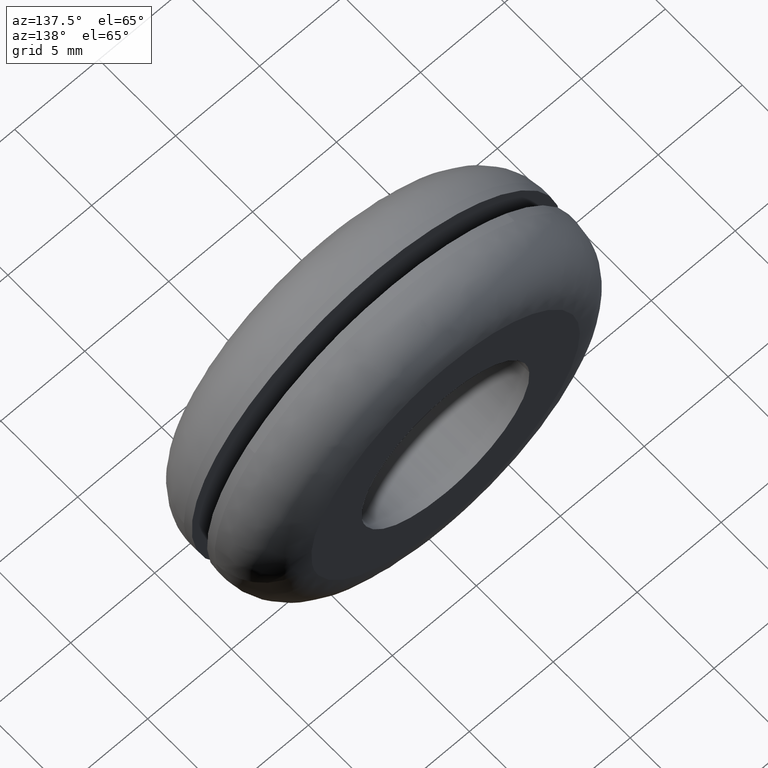
[diagram: clean part render]
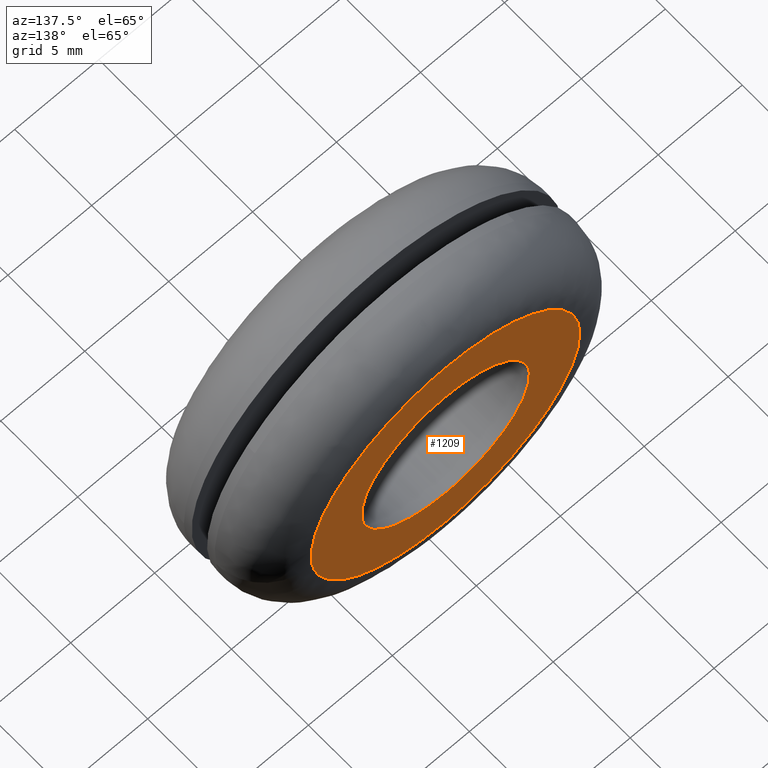
[diagram: same view with one face highlighted and labeled with its STEP entity id]
A machine part, auxiliary view. The second image highlights one B-rep face of the part: STEP entity #1209.
In plain terms, the highlighted face is a freeform B-spline surface patch.
Its self-contained STEP definition (entity closure, byte-faithful):
#678=CARTESIAN_POINT('',(4.965048615628705,7.999999999999972,-0.590162896473502));
#679=VERTEX_POINT('',#678);
#680=CARTESIAN_POINT('',(0.0,8.0,5.0));
#681=VERTEX_POINT('',#680);
#682=CARTESIAN_POINT('',(4.965048615628706,7.999999999999972,-0.590162896473502));
#683=CARTESIAN_POINT('',(5.000000000000001,8.0,-0.296116416104750));
#684=CARTESIAN_POINT('',(5.0,8.0,-1.836910E-016));
#685=CARTESIAN_POINT('',(5.000000000000001,8.0,5.000000000000001));
#686=CARTESIAN_POINT('',(0.0,8.0,5.0));
#694=(BOUNDED_CURVE()B_SPLINE_CURVE(2,(#682,#683,#684,#685,#686),.UNSPECIFIED.,.F.,.U.)B_SPLINE_CURVE_WITH_KNOTS((3,2,3),(0.229562755246671,0.250000000000000,0.500000000000000),.UNSPECIFIED.)CURVE()GEOMETRIC_REPRESENTATION_ITEM()RATIONAL_B_SPLINE_CURVE((0.956027306392972,0.976056278402077,1.0,0.707106781186548,1.0))REPRESENTATION_ITEM(''));
#695=EDGE_CURVE('',#679,#681,#694,.T.);
#736=CARTESIAN_POINT('',(-4.990674044478091,8.0,0.305241841450281));
#737=VERTEX_POINT('',#736);
#743=CARTESIAN_POINT('',(0.0,8.0,5.0));
#744=CARTESIAN_POINT('',(-4.703531951465122,8.0,5.0));
#745=CARTESIAN_POINT('',(-4.990674044478091,8.0,0.305241841450281));
#753=(BOUNDED_CURVE()B_SPLINE_CURVE(2,(#743,#744,#745),.UNSPECIFIED.,.F.,.U.)B_SPLINE_CURVE_WITH_KNOTS((3,3),(0.500000000000000,0.739333021447883),.UNSPECIFIED.)CURVE()GEOMETRIC_REPRESENTATION_ITEM()RATIONAL_B_SPLINE_CURVE((1.0,0.719603923919122,0.976072168562780))REPRESENTATION_ITEM(''));
#754=EDGE_CURVE('',#681,#737,#753,.T.);
#781=CARTESIAN_POINT('',(0.0,8.0,-5.0));
#782=VERTEX_POINT('',#781);
#783=CARTESIAN_POINT('',(0.0,8.0,-5.0));
#784=CARTESIAN_POINT('',(4.440880084878231,8.0,-4.999999999999999));
#785=CARTESIAN_POINT('',(4.965048615628706,7.999999999999972,-0.590162896473502));
#793=(BOUNDED_CURVE()B_SPLINE_CURVE(2,(#783,#784,#785),.UNSPECIFIED.,.F.,.U.)B_SPLINE_CURVE_WITH_KNOTS((3,3),(0.0,0.229562755246671),.UNSPECIFIED.)CURVE()GEOMETRIC_REPRESENTATION_ITEM()RATIONAL_B_SPLINE_CURVE((1.0,0.731050502784471,0.956027306392972))REPRESENTATION_ITEM(''));
#794=EDGE_CURVE('',#782,#679,#793,.T.);
#796=CARTESIAN_POINT('',(-4.990674044478091,8.0,0.305241841450280));
#797=CARTESIAN_POINT('',(-4.999999999999999,8.0,0.152762957868185));
#798=CARTESIAN_POINT('',(-5.0,8.0,-1.836910E-016));
#799=CARTESIAN_POINT('',(-5.000000000000001,8.0,-5.000000000000001));
#800=CARTESIAN_POINT('',(0.0,8.0,-5.0));
#808=(BOUNDED_CURVE()B_SPLINE_CURVE(2,(#796,#797,#798,#799,#800),.UNSPECIFIED.,.F.,.U.)B_SPLINE_CURVE_WITH_KNOTS((3,2,3),(0.739333021447884,0.750000000000000,1.0),.UNSPECIFIED.)CURVE()GEOMETRIC_REPRESENTATION_ITEM()RATIONAL_B_SPLINE_CURVE((0.976072168562782,0.987502857267426,1.0,0.707106781186548,1.0))REPRESENTATION_ITEM(''));
#809=EDGE_CURVE('',#737,#782,#808,.T.);
#1033=CARTESIAN_POINT('',(7.946493110639366,7.999999999999999,-0.923713834716952));
#1034=VERTEX_POINT('',#1033);
#1048=CARTESIAN_POINT('',(0.0,8.0,8.0));
#1049=VERTEX_POINT('',#1048);
#1050=CARTESIAN_POINT('',(7.946493110639366,7.999999999999999,-0.923713834716952));
#1051=CARTESIAN_POINT('',(8.0,8.0,-0.463406632841483));
#1052=CARTESIAN_POINT('',(8.0,8.0,-1.836910E-016));
#1053=CARTESIAN_POINT('',(8.0,8.0,8.0));
#1054=CARTESIAN_POINT('',(0.0,8.0,8.0));
#1062=(BOUNDED_CURVE()B_SPLINE_CURVE(2,(#1050,#1051,#1052,#1053,#1054),.UNSPECIFIED.,.F.,.U.)B_SPLINE_CURVE_WITH_KNOTS((3,2,3),(0.229999999997536,0.250000000000000,0.500000000000000),.UNSPECIFIED.)CURVE()GEOMETRIC_REPRESENTATION_ITEM()RATIONAL_B_SPLINE_CURVE((0.956886118185810,0.976568542492037,1.0,0.707106781186548,1.0))REPRESENTATION_ITEM(''));
#1063=EDGE_CURVE('',#1034,#1049,#1062,.T.);
#1065=CARTESIAN_POINT('',(-8.000000000034902,8.0,3.854320E-016));
#1066=VERTEX_POINT('',#1065);
#1067=CARTESIAN_POINT('',(0.0,8.0,8.0));
#1068=CARTESIAN_POINT('',(-7.999999999999960,8.0,8.0));
#1069=CARTESIAN_POINT('',(-8.000000000034902,8.0,3.854320E-016));
#1077=(BOUNDED_CURVE()B_SPLINE_CURVE(2,(#1067,#1068,#1069),.UNSPECIFIED.,.F.,.U.)B_SPLINE_CURVE_WITH_KNOTS((3,3),(0.500000000000000,0.749999999999999),.UNSPECIFIED.)CURVE()GEOMETRIC_REPRESENTATION_ITEM()RATIONAL_B_SPLINE_CURVE((1.0,0.707106781186549,0.999999999999998))REPRESENTATION_ITEM(''));
#1078=EDGE_CURVE('',#1049,#1066,#1077,.T.);
#1124=CARTESIAN_POINT('',(0.0,8.0,-8.0));
#1125=VERTEX_POINT('',#1124);
#1126=CARTESIAN_POINT('',(-8.000000000034902,8.0,3.854320E-016));
#1127=CARTESIAN_POINT('',(-8.0,8.0,-8.0));
#1128=CARTESIAN_POINT('',(0.0,8.0,-8.0));
#1136=(BOUNDED_CURVE()B_SPLINE_CURVE(2,(#1126,#1127,#1128),.UNSPECIFIED.,.F.,.U.)B_SPLINE_CURVE_WITH_KNOTS((3,3),(0.750000000000000,1.0),.UNSPECIFIED.)CURVE()GEOMETRIC_REPRESENTATION_ITEM()RATIONAL_B_SPLINE_CURVE((1.0,0.707106781186548,1.0))REPRESENTATION_ITEM(''));
#1137=EDGE_CURVE('',#1066,#1125,#1136,.T.);
#1139=CARTESIAN_POINT('',(0.0,8.0,-8.0));
#1140=CARTESIAN_POINT('',(7.123933606511065,8.0,-8.0));
#1141=CARTESIAN_POINT('',(7.946493110639366,7.999999999999999,-0.923713834716952));
#1149=(BOUNDED_CURVE()B_SPLINE_CURVE(2,(#1139,#1140,#1141),.UNSPECIFIED.,.F.,.U.)B_SPLINE_CURVE_WITH_KNOTS((3,3),(0.0,0.229999999997536),.UNSPECIFIED.)CURVE()GEOMETRIC_REPRESENTATION_ITEM()RATIONAL_B_SPLINE_CURVE((1.0,0.730538238694511,0.956886118185809))REPRESENTATION_ITEM(''));
#1150=EDGE_CURVE('',#1125,#1034,#1149,.T.);
#1192=CARTESIAN_POINT('',(-8.799197803222617,8.0,8.799199968988896));
#1193=CARTESIAN_POINT('',(-8.799197803222617,8.0,-8.799200398142338));
#1194=CARTESIAN_POINT('',(8.799154872664541,8.0,8.799199968988896));
#1195=CARTESIAN_POINT('',(8.799154872664541,8.0,-8.799200398142338));
#1196=B_SPLINE_SURFACE_WITH_KNOTS('',1,1,((#1192,#1194),(#1193,#1195)),.UNSPECIFIED.,.F.,.F.,.U.,(2,2),(2,2),(0.0,17.598400367131230),(0.0,17.598352675887160),.UNSPECIFIED.);
#1197=ORIENTED_EDGE('',*,*,#1137,.F.);
#1198=ORIENTED_EDGE('',*,*,#1078,.F.);
#1199=ORIENTED_EDGE('',*,*,#1063,.F.);
#1200=ORIENTED_EDGE('',*,*,#1150,.F.);
#1201=EDGE_LOOP('',(#1197,#1198,#1199,#1200));
#1202=FACE_OUTER_BOUND('',#1201,.T.);
#1203=ORIENTED_EDGE('',*,*,#754,.T.);
#1204=ORIENTED_EDGE('',*,*,#809,.T.);
#1205=ORIENTED_EDGE('',*,*,#794,.T.);
#1206=ORIENTED_EDGE('',*,*,#695,.T.);
#1207=EDGE_LOOP('',(#1203,#1204,#1205,#1206));
#1208=FACE_BOUND('',#1207,.T.);
#1209=ADVANCED_FACE('',(#1202,#1208),#1196,.F.);